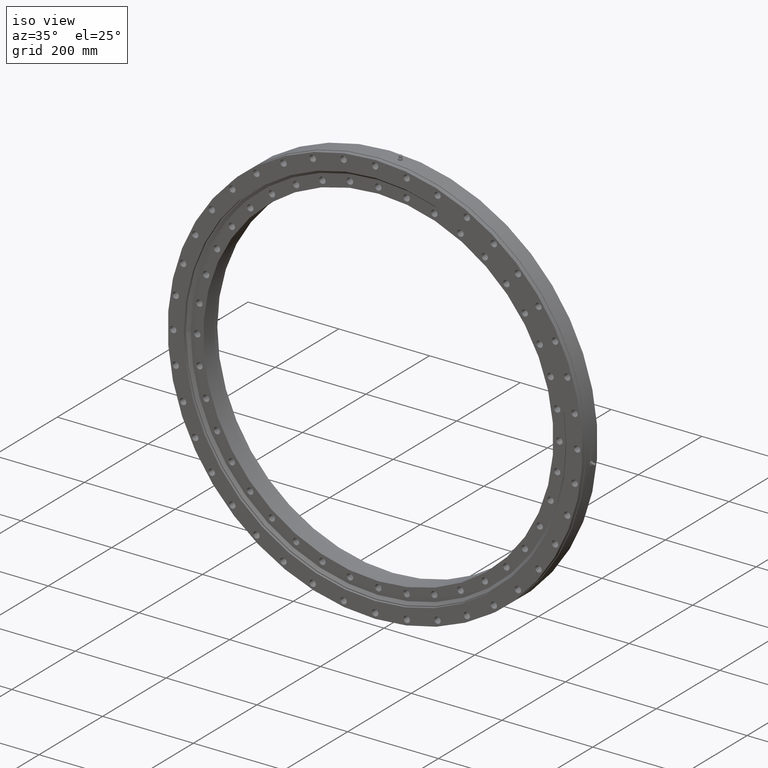
[diagram: clean part render]
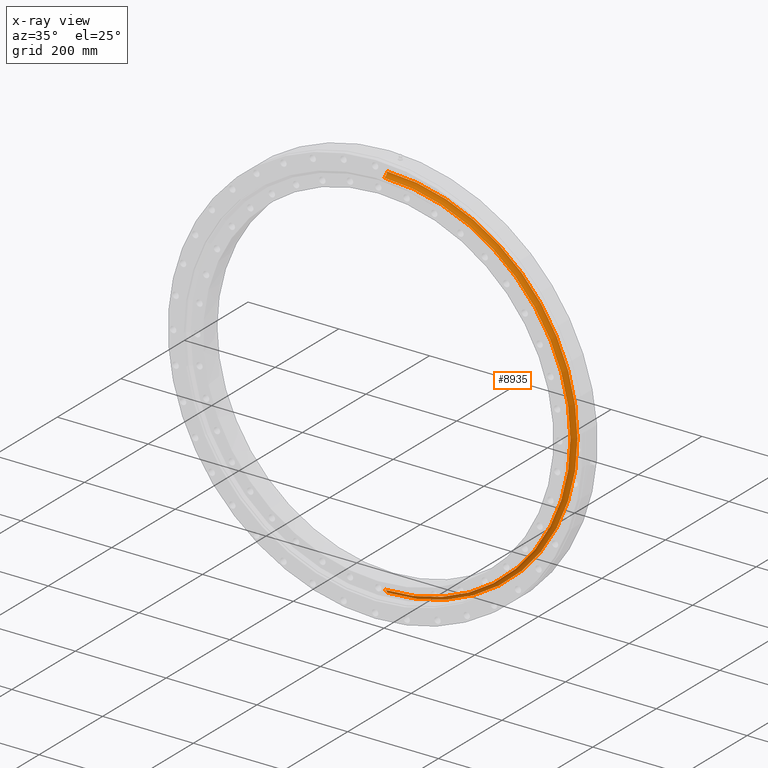
[diagram: x-ray — body ghosted, one internal face saturated and labeled with its STEP entity id]
A machine part, iso view, then the same camera in x-ray: the body is ghosted and one INTERNAL B-rep face — a face not visible from any outside direction — is saturated and labeled: STEP entity #8935.
In plain terms, the highlighted toroidal blend (fillet) surface has major radius 420.5 mm and minor (blend) radius 9.75 mm.
Its self-contained STEP definition (entity closure, byte-faithful):
#171 = DIRECTION ( 'NONE',  ( -0.0000000000000000000, 1.000000000000000000, -2.727064569436389700E-017 ) ) ;
#199 = ORIENTED_EDGE ( 'NONE', *, *, #4464, .T. ) ;
#261 = CARTESIAN_POINT ( 'NONE',  ( 0.0000000000000000000, -1.160237148502951200E-014, 3.256198623627719100E-032 ) ) ;
#270 = AXIS2_PLACEMENT_3D ( 'NONE', #3904, #3005, #9438 ) ;
#676 = CIRCLE ( 'NONE', #270, 419.5249999999999800 ) ;
#686 = ORIENTED_EDGE ( 'NONE', *, *, #1053, .T. ) ;
#952 = CARTESIAN_POINT ( 'NONE',  ( 0.0000000000000000000, -1.160237148502953700E-014, 410.7500000000000000 ) ) ;
#1005 = DIRECTION ( 'NONE',  ( 0.0000000000000000000, 2.727064569436389700E-017, 1.000000000000000000 ) ) ;
#1053 = EDGE_CURVE ( 'NONE', #1617, #2488, #7388, .T. ) ;
#1466 = TOROIDAL_SURFACE ( 'NONE', #5169, 420.5000000000000000, 9.750000000000000000 ) ;
#1617 = VERTEX_POINT ( 'NONE', #5102 ) ;
#1704 = CARTESIAN_POINT ( 'NONE',  ( 0.0000000000000000000, 1.058965658619175200E-015, 420.5000000000000000 ) ) ;
#2188 = CIRCLE ( 'NONE', #9168, 410.7500000000000000 ) ;
#2325 = ORIENTED_EDGE ( 'NONE', *, *, #10059, .F. ) ;
#2422 = CARTESIAN_POINT ( 'NONE',  ( 5.149639790414619900E-014, -2.187564737034086100E-014, -420.5000000000000000 ) ) ;
#2488 = VERTEX_POINT ( 'NONE', #952 ) ;
#3005 = DIRECTION ( 'NONE',  ( -0.0000000000000000000, 1.000000000000000000, -2.727064569436389700E-017 ) ) ;
#3904 = CARTESIAN_POINT ( 'NONE',  ( 0.0000000000000000000, 9.701127511789534800, -1.110739774789769800E-015 ) ) ;
#4136 = EDGE_CURVE ( 'NONE', #5776, #10062, #5957, .T. ) ;
#4330 = DIRECTION ( 'NONE',  ( -0.0000000000000000000, 1.000000000000000000, -2.727064569436389700E-017 ) ) ;
#4464 = EDGE_CURVE ( 'NONE', #2488, #10062, #2188, .T. ) ;
#4519 = DIRECTION ( 'NONE',  ( 0.0000000000000000000, 0.0000000000000000000, 1.000000000000000000 ) ) ;
#5102 = CARTESIAN_POINT ( 'NONE',  ( 0.0000000000000000000, 9.701127511789547200, 419.5249999999999800 ) ) ;
#5169 = AXIS2_PLACEMENT_3D ( 'NONE', #6620, #171, #1005 ) ;
#5776 = VERTEX_POINT ( 'NONE', #8941 ) ;
#5957 = CIRCLE ( 'NONE', #7019, 9.749999999999980500 ) ;
#6014 = DIRECTION ( 'NONE',  ( 0.0000000000000000000, 2.727064569436389400E-017, 1.000000000000000000 ) ) ;
#6110 = FACE_OUTER_BOUND ( 'NONE', #7616, .T. ) ;
#6538 = DIRECTION ( 'NONE',  ( 1.000000000000000000, 3.339690896028429500E-033, 1.224646799147353200E-016 ) ) ;
#6620 = CARTESIAN_POINT ( 'NONE',  ( 0.0000000000000000000, -1.040834085586084300E-014, 0.0000000000000000000 ) ) ;
#6918 = CARTESIAN_POINT ( 'NONE',  ( 5.030236727497753200E-014, -1.160237148502949300E-014, -410.7500000000000000 ) ) ;
#7019 = AXIS2_PLACEMENT_3D ( 'NONE', #2422, #6538, #8998 ) ;
#7388 = CIRCLE ( 'NONE', #9585, 9.749999999999980500 ) ;
#7616 = EDGE_LOOP ( 'NONE', ( #686, #199, #8108, #2325 ) ) ;
#8108 = ORIENTED_EDGE ( 'NONE', *, *, #4136, .F. ) ;
#8935 = ADVANCED_FACE ( 'NONE', ( #6110 ), #1466, .F. ) ;
#8941 = CARTESIAN_POINT ( 'NONE',  ( 5.137699484122933200E-014, 9.701127511789522400, -419.5249999999999800 ) ) ;
#8998 = DIRECTION ( 'NONE',  ( 1.224646799147356200E-016, 0.0000000000000000000, -1.000000000000000000 ) ) ;
#9168 = AXIS2_PLACEMENT_3D ( 'NONE', #261, #4330, #6014 ) ;
#9438 = DIRECTION ( 'NONE',  ( 0.0000000000000000000, 2.894479311563709200E-017, 1.000000000000000000 ) ) ;
#9585 = AXIS2_PLACEMENT_3D ( 'NONE', #1704, #10286, #4519 ) ;
#10059 = EDGE_CURVE ( 'NONE', #1617, #5776, #676, .T. ) ;
#10062 = VERTEX_POINT ( 'NONE', #6918 ) ;
#10286 = DIRECTION ( 'NONE',  ( -1.000000000000000000, 0.0000000000000000000, 0.0000000000000000000 ) ) ;